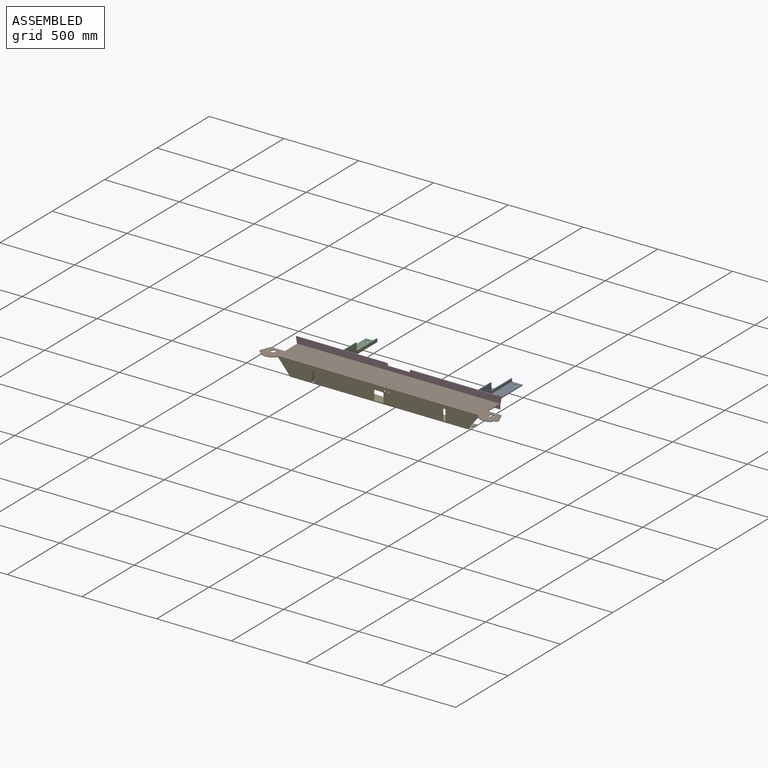
[diagram: assembled view]
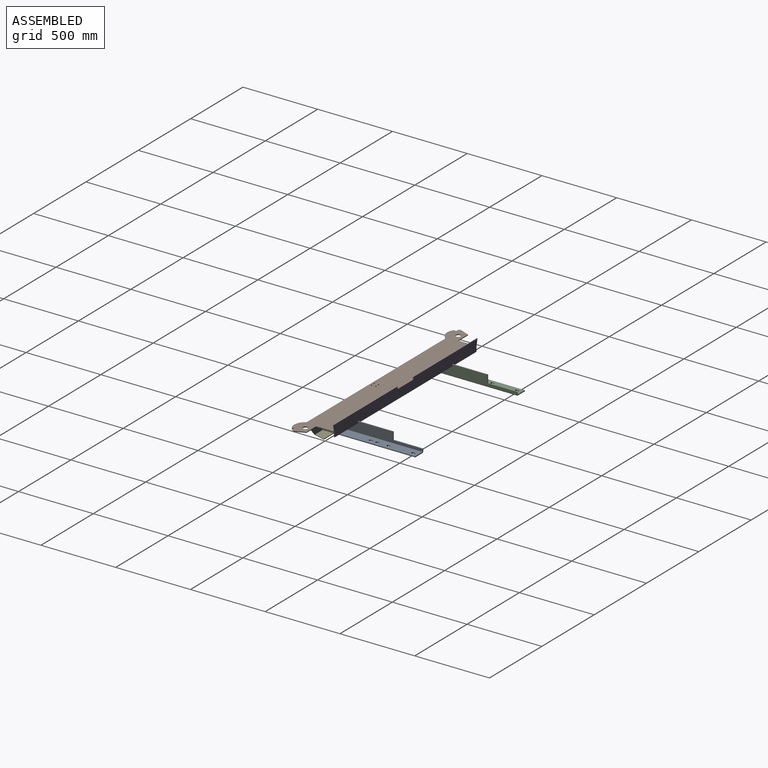
[diagram: assembled view, second angle]
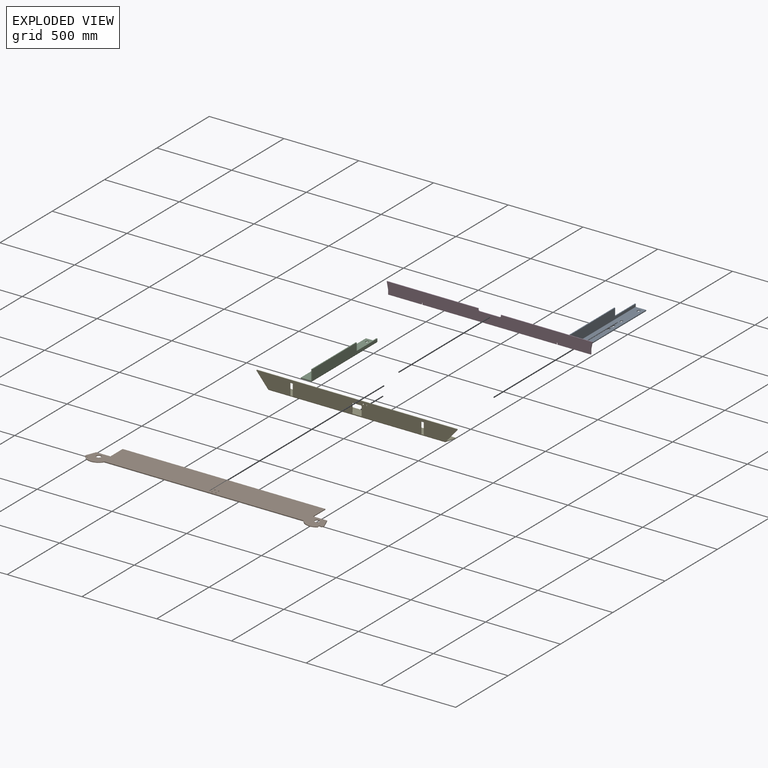
[diagram: exploded view]
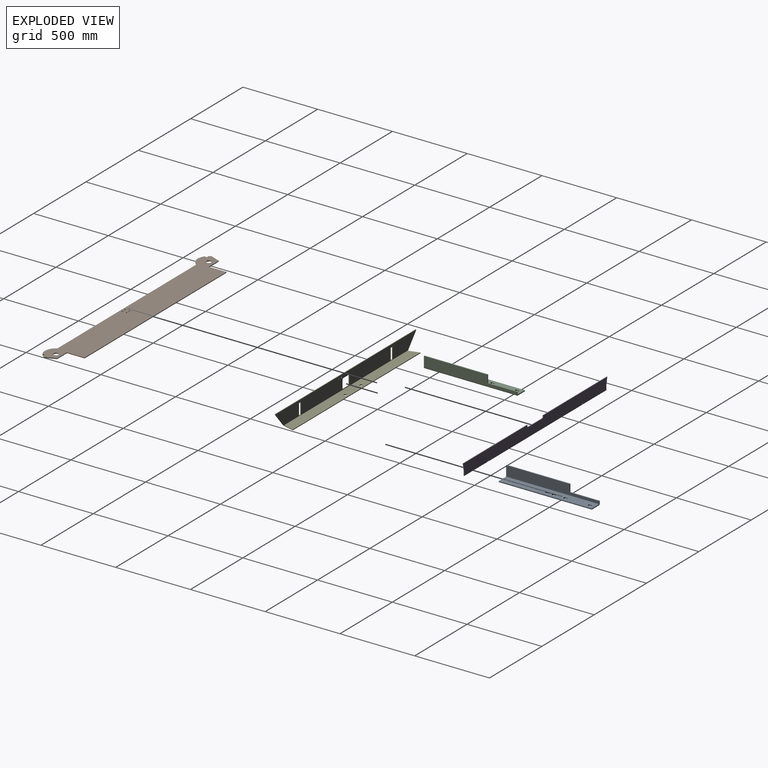
[diagram: exploded view, second angle]
ASSEMBLY  parts=5 mates=4
PART A: 32 faces, bbox 622.3x76.2x76.2 mm
  f0: plane 18.06x6.35mm, normal (-1,0,0), area 114.7mm2, adj f4,f5,f6,f29
  f1: plane 68.86x6.35mm, normal (1,0,0), area 437.3mm2, adj f2,f5,f6,f28
  f2: plane 425.45x6.35mm, normal (0,0,1), area 2701.6mm2, adj f1,f3,f5,f6
  f3: plane 50.8x6.35mm, normal (-1,0,0), area 322.6mm2, adj f2,f4,f5,f6
  f4: plane 196.85x6.35mm, normal (0,0,1), area 1250mm2, adj f0,f3,f5,f6
  f5: plane 622.3x68.86mm, normal (0,-1,0), area 32851.2mm2, adj f0,f1,f2,f3,f4,f30
  f6: plane 622.3x68.86mm, normal (0,1,0), area 32851.2mm2, adj f0,f1,f2,f3,f4,f31
  f7: plane 11.2x6.35mm, normal (0,-1,0), area 71.1mm2, adj f8,f25,f26,f27
  f8: cylinder r=7.15mm len=14.3mm, axis (0,0,-1), area 142.7mm2, adj f7,f9,f26,f27
  f9: plane 11.2x6.35mm, normal (0,1,0), area 71.1mm2, adj f8,f25,f26,f27
  f10: plane 11.2x6.35mm, normal (0,-1,0), area 71.1mm2, adj f11,f24,f26,f27
  f11: cylinder r=7.15mm len=14.3mm, axis (0,0,-1), area 141.8mm2, adj f10,f12,f26,f27
  f12: plane 11.2x6.35mm, normal (0,1,0), area 71.1mm2, adj f11,f24,f26,f27
  f13: plane 11.2x6.35mm, normal (0,1,0), area 71.1mm2, adj f14,f23,f26,f27
  f14: cylinder r=7.15mm len=14.3mm, axis (0,0,-1), area 142.6mm2, adj f13,f15,f26,f27
  f15: plane 11.33x6.35mm, normal (0,-1,0), area 71.9mm2, adj f14,f23,f26,f27
  f16: plane 11.36x6.35mm, normal (0,-1,0), area 72.1mm2, adj f17,f22,f26,f27
  f17: cylinder r=7.15mm len=14.3mm, axis (0,0,-1), area 142mm2, adj f16,f18,f26,f27
  f18: plane 11.21x6.35mm, normal (0,1,0), area 71.2mm2, adj f17,f22,f26,f27
  f19: plane 68.86x6.35mm, normal (-1,0,0), area 437.3mm2, adj f20,f26,f27,f29
  f20: plane 622.3x6.35mm, normal (0,1,0), area 3951.6mm2, adj f19,f21,f26,f27
  f21: plane 68.86x6.35mm, normal (1,0,0), area 437.3mm2, adj f20,f26,f27,f28
  f22: cylinder r=7.15mm len=14.3mm, axis (0,0,-1), area 141mm2, adj f16,f18,f26,f27
  f23: cylinder r=7.15mm len=14.3mm, axis (0,0,-1), area 141.8mm2, adj f13,f15,f26,f27
  f24: cylinder r=7.15mm len=14.3mm, axis (0,0,-1), area 143.5mm2, adj f10,f12,f26,f27
  f25: cylinder r=7.15mm len=14.3mm, axis (0,0,-1), area 142.6mm2, adj f7,f9,f26,f27
  f26: plane 622.3x68.86mm, normal (0,0,-1), area 41569.5mm2, adj f7,f8,f9,f10,f11,f12,f13,f14
  f27: plane 622.3x68.86mm, normal (0,0,1), area 41569.5mm2, adj f7,f8,f9,f10,f11,f12,f13,f14
  f28: plane 7.34x7.34mm, normal (1,0,0), area 41.6mm2, adj f1,f21,f30,f31
  f29: plane 7.34x7.34mm, normal (-1,0,0), area 41.6mm2, adj f0,f19,f30,f31
  f30: cylinder r=7.34mm len=622.3mm, axis (1,0,0), area 7175.5mm2, adj f5,f26,f28,f29
  f31: cylinder r=0.99mm len=622.3mm, axis (1,0,0), area 968.3mm2, adj f6,f27,f28,f29
PART B: 30 faces, bbox 1597.4x4.8x228.6 mm
  f0: plane 117.48x4.78mm, normal (1,0,0), area 561mm2, adj f1,f27,f28,f29
  f1: plane 93.98x4.78mm, normal (0,0,1), area 448.8mm2, adj f0,f2,f28,f29
  f2: plane 66.19x26.74mm, normal (0.93,0,0.37), area 340.9mm2, adj f1,f3,f28,f29
  f3: cylinder r=74.61mm len=16.69mm, axis (0,-1,0), area 93.2mm2, adj f2,f4,f28,f29
  f4: cylinder r=1.27mm len=4.78mm, axis (0,-1,0), area 10.2mm2, adj f3,f5,f28,f29
  f5: plane 4.78x2.13mm, normal (-0.71,0,-0.71), area 14.4mm2, adj f4,f6,f28,f29
  f6: cylinder r=7.15mm len=12.21mm, axis (0,-1,0), area 107.3mm2, adj f5,f7,f28,f29
  f7: plane 4.78x2.13mm, normal (0.71,0,0.71), area 14.4mm2, adj f6,f8,f28,f29
  f8: cylinder r=1.27mm len=4.78mm, axis (0,-1,0), area 10.2mm2, adj f7,f9,f28,f29
  f9: cylinder r=74.61mm len=111.43mm, axis (0,-1,0), area 616.4mm2, adj f8,f10,f28,f29
  f10: plane 1330.35x4.78mm, normal (0,0,-1), area 6352.7mm2, adj f9,f11,f28,f29
  f11: cylinder r=74.61mm len=111.43mm, axis (0,-1,0), area 616.4mm2, adj f10,f12,f28,f29
  f12: cylinder r=1.27mm len=4.78mm, axis (0,-1,0), area 10.2mm2, adj f11,f13,f28,f29
  f13: plane 4.78x2.13mm, normal (-0.71,0,0.71), area 14.4mm2, adj f12,f14,f28,f29
  f14: cylinder r=7.15mm len=12.21mm, axis (0,-1,0), area 107.3mm2, adj f13,f15,f28,f29
  f15: plane 4.78x2.13mm, normal (0.71,0,-0.71), area 14.4mm2, adj f14,f16,f28,f29
  f16: cylinder r=1.27mm len=4.78mm, axis (0,-1,0), area 10.2mm2, adj f15,f17,f28,f29
  f17: cylinder r=74.61mm len=16.69mm, axis (0,-1,0), area 93.2mm2, adj f16,f18,f28,f29
  f18: plane 66.19x26.74mm, normal (-0.93,0,0.37), area 340.9mm2, adj f17,f19,f28,f29
  f19: plane 93.98x4.78mm, normal (0,0,1), area 448.8mm2, adj f18,f20,f28,f29
  f20: plane 117.48x4.78mm, normal (-1,0,0), area 561mm2, adj f19,f27,f28,f29
  f21: cylinder r=15.88mm len=31.75mm, axis (0,-1,0), area 476.3mm2, adj f28,f29
  f22: cylinder r=4.37mm len=8.74mm, axis (0,-1,0), area 131.1mm2, adj f28,f29
  f23: cylinder r=4.37mm len=8.74mm, axis (0,-1,0), area 131.1mm2, adj f28,f29
  f24: cylinder r=4.37mm len=8.74mm, axis (0,-1,0), area 131.1mm2, adj f28,f29
  f25: cylinder r=4.37mm len=8.74mm, axis (0,-1,0), area 131.1mm2, adj f28,f29
  f26: cylinder r=15.88mm len=31.75mm, axis (0,-1,0), area 476.3mm2, adj f28,f29
  f27: plane 1355.98x4.78mm, normal (0,0,1), area 6475.1mm2, adj f0,f20,f28,f29
  f28: plane 1597.42x228.61mm, normal (0,1,0), area 279082.2mm2, adj f0,f1,f2,f3,f4,f5,f6,f7
  f29: plane 1597.42x228.61mm, normal (0,-1,0), area 279082.2mm2, adj f0,f1,f2,f3,f4,f5,f6,f7
PART C: 32 faces, bbox 622.3x76.2x76.2 mm
  f0: plane 68.86x6.35mm, normal (1,0,0), area 437.3mm2, adj f4,f5,f6,f28
  f1: plane 18.06x6.35mm, normal (-1,0,0), area 114.7mm2, adj f2,f5,f6,f29
  f2: plane 196.85x6.35mm, normal (0,0,1), area 1250mm2, adj f1,f3,f5,f6
  f3: plane 50.8x6.35mm, normal (-1,0,0), area 322.6mm2, adj f2,f4,f5,f6
  f4: plane 425.45x6.35mm, normal (0,0,1), area 2701.6mm2, adj f0,f3,f5,f6
  f5: plane 622.3x68.86mm, normal (0,1,0), area 32851.2mm2, adj f0,f1,f2,f3,f4,f30
  f6: plane 622.3x68.86mm, normal (0,-1,0), area 32851.2mm2, adj f0,f1,f2,f3,f4,f31
  f7: plane 11.2x6.35mm, normal (0,-1,0), area 71.1mm2, adj f8,f25,f26,f27
  f8: cylinder r=7.15mm len=14.3mm, axis (0,0,-1), area 142.7mm2, adj f7,f9,f26,f27
  f9: plane 11.2x6.35mm, normal (0,1,0), area 71.1mm2, adj f8,f25,f26,f27
  f10: plane 11.2x6.35mm, normal (0,-1,0), area 71.1mm2, adj f11,f24,f26,f27
  f11: cylinder r=7.15mm len=14.3mm, axis (0,0,-1), area 141.8mm2, adj f10,f12,f26,f27
  f12: plane 11.2x6.35mm, normal (0,1,0), area 71.1mm2, adj f11,f24,f26,f27
  f13: plane 11.2x6.35mm, normal (0,-1,0), area 71.1mm2, adj f14,f23,f26,f27
  f14: cylinder r=7.15mm len=14.3mm, axis (0,0,-1), area 141.8mm2, adj f13,f15,f26,f27
  f15: plane 11.33x6.35mm, normal (0,1,0), area 71.9mm2, adj f14,f23,f26,f27
  f16: plane 11.21x6.35mm, normal (0,-1,0), area 71.2mm2, adj f17,f22,f26,f27
  f17: cylinder r=7.15mm len=14.3mm, axis (0,0,-1), area 142mm2, adj f16,f18,f26,f27
  f18: plane 11.36x6.35mm, normal (0,1,0), area 72.1mm2, adj f17,f22,f26,f27
  f19: plane 68.86x6.35mm, normal (-1,0,0), area 437.3mm2, adj f21,f26,f27,f29
  f20: plane 68.86x6.35mm, normal (1,0,0), area 437.3mm2, adj f21,f26,f27,f28
  f21: plane 622.3x6.35mm, normal (0,-1,0), area 3951.6mm2, adj f19,f20,f26,f27
  f22: cylinder r=7.15mm len=14.3mm, axis (0,0,-1), area 141mm2, adj f16,f18,f26,f27
  f23: cylinder r=7.15mm len=14.3mm, axis (0,0,-1), area 142.6mm2, adj f13,f15,f26,f27
  f24: cylinder r=7.15mm len=14.3mm, axis (0,0,-1), area 143.5mm2, adj f10,f12,f26,f27
  f25: cylinder r=7.15mm len=14.3mm, axis (0,0,-1), area 142.6mm2, adj f7,f9,f26,f27
  f26: plane 622.3x68.86mm, normal (0,0,-1), area 41569.5mm2, adj f7,f8,f9,f10,f11,f12,f13,f14
  f27: plane 622.3x68.86mm, normal (0,0,1), area 41569.5mm2, adj f7,f8,f9,f10,f11,f12,f13,f14
  f28: plane 7.34x7.34mm, normal (1,0,0), area 41.6mm2, adj f0,f20,f30,f31
  f29: plane 7.34x7.34mm, normal (-1,0,0), area 41.6mm2, adj f1,f19,f30,f31
  f30: cylinder r=7.34mm len=622.3mm, axis (1,0,0), area 7175.5mm2, adj f5,f26,f28,f29
  f31: cylinder r=0.99mm len=622.3mm, axis (1,0,0), area 968.3mm2, adj f6,f27,f28,f29
PART D: 22 faces, bbox 1374.5x4.8x77.8 mm
  f0: plane 223.96x4.78mm, normal (0,0,-1), area 1069.5mm2, adj f1,f19,f20,f21
  f1: plane 30.18x4.78mm, normal (-1,0,0), area 144.1mm2, adj f0,f2,f20,f21
  f2: plane 47.63x9.26mm, normal (-0.98,0,-0.19), area 231.7mm2, adj f1,f3,f20,f21
  f3: plane 611.05x4.78mm, normal (0,0,1), area 2917.9mm2, adj f2,f4,f20,f21
  f4: plane 6.35x4.78mm, normal (1,0,0), area 30.3mm2, adj f3,f5,f20,f21
  f5: cylinder r=9.53mm len=9.53mm, axis (0,-1,0), area 71.4mm2, adj f4,f6,f20,f21
  f6: plane 133.35x4.78mm, normal (0,0,1), area 636.8mm2, adj f5,f7,f20,f21
  f7: cylinder r=9.53mm len=9.53mm, axis (0,-1,0), area 71.4mm2, adj f6,f8,f20,f21
  f8: plane 6.35x4.78mm, normal (-1,0,0), area 30.3mm2, adj f7,f9,f20,f21
  f9: plane 611.05x4.78mm, normal (0,0,1), area 2917.9mm2, adj f8,f10,f20,f21
  f10: plane 47.63x9.26mm, normal (0.98,0,-0.19), area 231.7mm2, adj f9,f11,f20,f21
  f11: plane 30.18x4.78mm, normal (1,0,0), area 144.1mm2, adj f10,f12,f20,f21
  f12: plane 223.96x4.78mm, normal (0,0,-1), area 1069.5mm2, adj f11,f13,f20,f21
  f13: plane 11.13x4.78mm, normal (-1,0,0), area 53.1mm2, adj f12,f14,f20,f21
  f14: plane 6.35x4.78mm, normal (0,0,-1), area 30.3mm2, adj f13,f15,f20,f21
  f15: plane 11.13x4.78mm, normal (1,0,0), area 53.1mm2, adj f14,f16,f20,f21
  f16: plane 895.35x4.78mm, normal (0,0,-1), area 4275.5mm2, adj f15,f17,f20,f21
  f17: plane 11.13x4.78mm, normal (-1,0,0), area 53.1mm2, adj f16,f18,f20,f21
  f18: plane 6.35x4.78mm, normal (0,0,-1), area 30.3mm2, adj f17,f19,f20,f21
  f19: plane 11.13x4.78mm, normal (1,0,0), area 53.1mm2, adj f0,f18,f20,f21
  f20: plane 1374.49x77.8mm, normal (0,1,0), area 103414.6mm2, adj f0,f1,f2,f3,f4,f5,f6,f7
  f21: plane 1374.49x77.8mm, normal (0,-1,0), area 103414.6mm2, adj f0,f1,f2,f3,f4,f5,f6,f7
PART E: 36 faces, bbox 1342x76.2x101.6 mm
  f0: plane 76.2x4.78mm, normal (1,0,0), area 363.9mm2, adj f1,f22,f23,f24
  f1: plane 19.05x4.78mm, normal (0,0,-1), area 91mm2, adj f0,f2,f23,f24
  f2: plane 76.2x4.78mm, normal (-1,0,0), area 363.9mm2, adj f1,f22,f23,f24
  f3: plane 76.2x4.78mm, normal (-1,0,0), area 363.9mm2, adj f4,f21,f23,f24
  f4: plane 19.05x4.78mm, normal (0,0,1), area 91mm2, adj f3,f5,f23,f24
  f5: plane 76.2x4.78mm, normal (1,0,0), area 363.9mm2, adj f4,f21,f23,f24
  f6: plane 52.4x4.78mm, normal (-1,0,0), area 250.2mm2, adj f7,f20,f23,f24
  f7: cylinder r=6.35mm len=6.35mm, axis (0,-1,0), area 47.6mm2, adj f6,f8,f23,f24
  f8: plane 52.4x4.78mm, normal (0,0,1), area 250.2mm2, adj f7,f9,f23,f24
  f9: cylinder r=6.35mm len=6.35mm, axis (0,-1,0), area 47.6mm2, adj f8,f10,f23,f24
  f10: plane 52.4x4.78mm, normal (1,0,0), area 250.2mm2, adj f9,f11,f23,f24
  f11: cylinder r=6.35mm len=6.35mm, axis (0,-1,0), area 47.6mm2, adj f10,f12,f23,f24
  f12: plane 52.4x4.78mm, normal (0,0,-1), area 250.2mm2, adj f11,f20,f23,f24
  f13: plane 91.06x76.41mm, normal (0.77,0,-0.64), area 567.6mm2, adj f14,f23,f24,f32
  f14: plane 4.78x4.78mm, normal (1,0,0), area 22.8mm2, adj f13,f15,f23,f24
  f15: plane 1341.96x4.78mm, normal (0,0,1), area 6408.1mm2, adj f14,f16,f23,f24
  f16: plane 4.78x4.78mm, normal (-1,0,0), area 22.8mm2, adj f15,f17,f23,f24
  f17: plane 91.06x76.41mm, normal (-0.77,0,-0.64), area 567.6mm2, adj f16,f23,f24,f33
  f18: cylinder r=4.37mm len=8.74mm, axis (0,-1,0), area 131.1mm2, adj f23,f24
  f19: cylinder r=4.37mm len=8.74mm, axis (0,-1,0), area 131.1mm2, adj f23,f24
  f20: cylinder r=6.35mm len=6.35mm, axis (0,-1,0), area 47.6mm2, adj f6,f12,f23,f24
  f21: plane 19.05x4.78mm, normal (0,0,-1), area 91mm2, adj f3,f5,f23,f24
  f22: plane 19.05x4.78mm, normal (0,0,1), area 91mm2, adj f0,f2,f23,f24
  f23: plane 1341.96x95.83mm, normal (0,-1,0), area 114421.3mm2, adj f0,f1,f2,f3,f4,f5,f6,f7
  f24: plane 1341.96x95.83mm, normal (0,1,0), area 114421.3mm2, adj f0,f1,f2,f3,f4,f5,f6,f7
  f25: plane 70.43x20.73mm, normal (0.96,-0.28,0), area 350.6mm2, adj f27,f30,f31,f32
  f26: plane 70.43x20.73mm, normal (-0.96,-0.28,0), area 350.6mm2, adj f27,f30,f31,f33
  f27: plane 1221.03x4.78mm, normal (0,1,0), area 5830.7mm2, adj f25,f26,f30,f31
  f28: cylinder r=9.53mm len=19.05mm, axis (0,0,-1), area 285.8mm2, adj f30,f31
  f29: cylinder r=9.53mm len=19.05mm, axis (0,0,-1), area 285.8mm2, adj f30,f31
  f30: plane 1221.03x70.43mm, normal (0,0,-1), area 83972mm2, adj f25,f26,f27,f28,f29,f34
  f31: plane 1221.03x70.43mm, normal (0,0,1), area 83972mm2, adj f25,f26,f27,f28,f29,f35
  f32: bspline ~5.77x5.77mm, area 37.3mm2, adj f13,f25,f34,f35
  f33: bspline ~5.77x5.77mm, area 37.4mm2, adj f17,f26,f34,f35
  f34: cylinder r=5.77mm len=1189.14mm, axis (1,0,0), area 10708.9mm2, adj f23,f30,f32,f33
  f35: cylinder r=0.99mm len=1189.14mm, axis (1,0,0), area 1839.9mm2, adj f24,f31,f32,f33
PLACE A rot(axis=(0,0,-1),90deg) t=(414.74,256.65,17.3)mm
PLACE B rot(axis=(-1,0,0),90deg) t=(-64.15,-75.65,94.77)mm
PLACE C rot(axis=(0,0,-1),90deg) t=(-676.22,256.65,0.04)mm
PLACE D t=(-56.68,136,112.42)mm
PLACE E t=(-74.68,-18.77,15.48)mm fixed
MATE fastened A.f1 <-> E.f24  axis (0,-1,0) through (373,-54.5,41.81)mm
MATE fastened B.f27 <-> D.f21  axis (0,1,0) through (-74.68,131.22,97.16)mm
MATE fastened E.f15 <-> B.f28  axis (0,0,1) through (-74.68,-59.28,94.77)mm
MATE fastened E.f24 <-> C.f0  axis (0,1,0) through (-522.35,-54.5,38.63)mm
